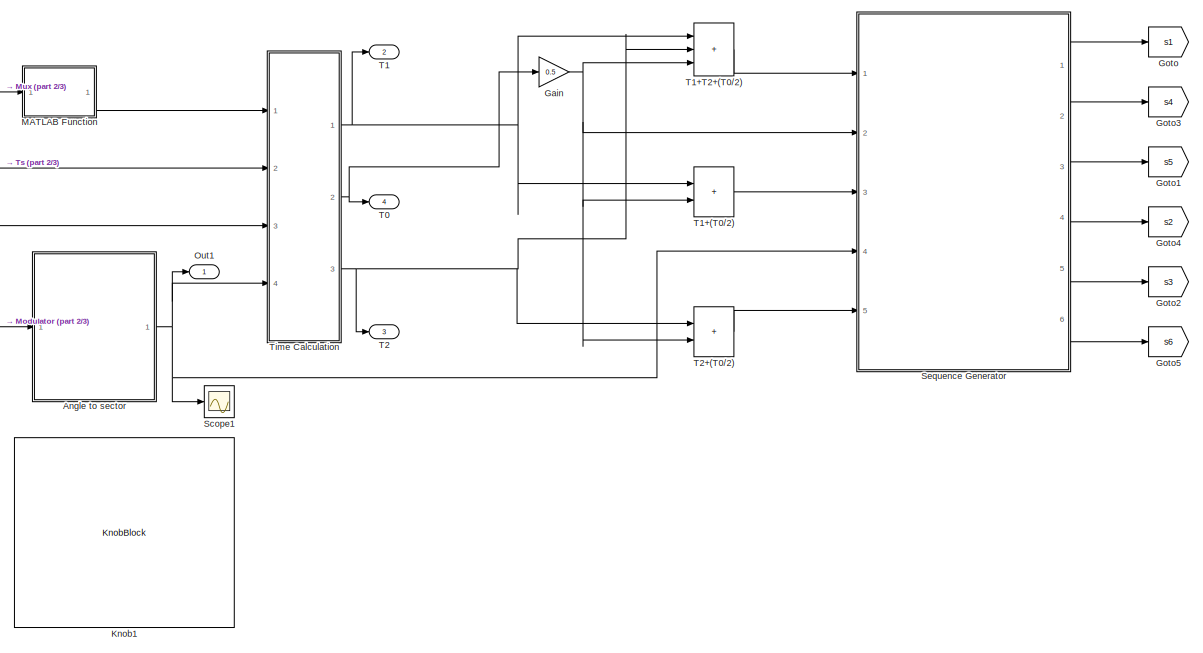
[diagram: root canvas - part 1/3, center side, full height]
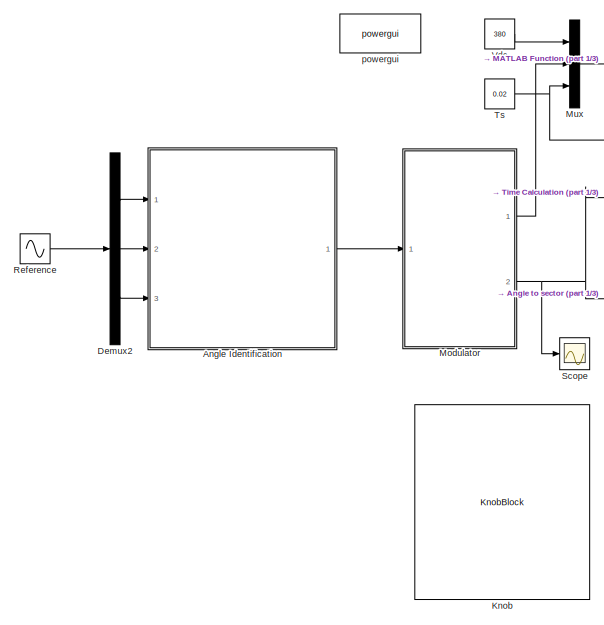
[diagram: root canvas - part 2/3, left side, full height]
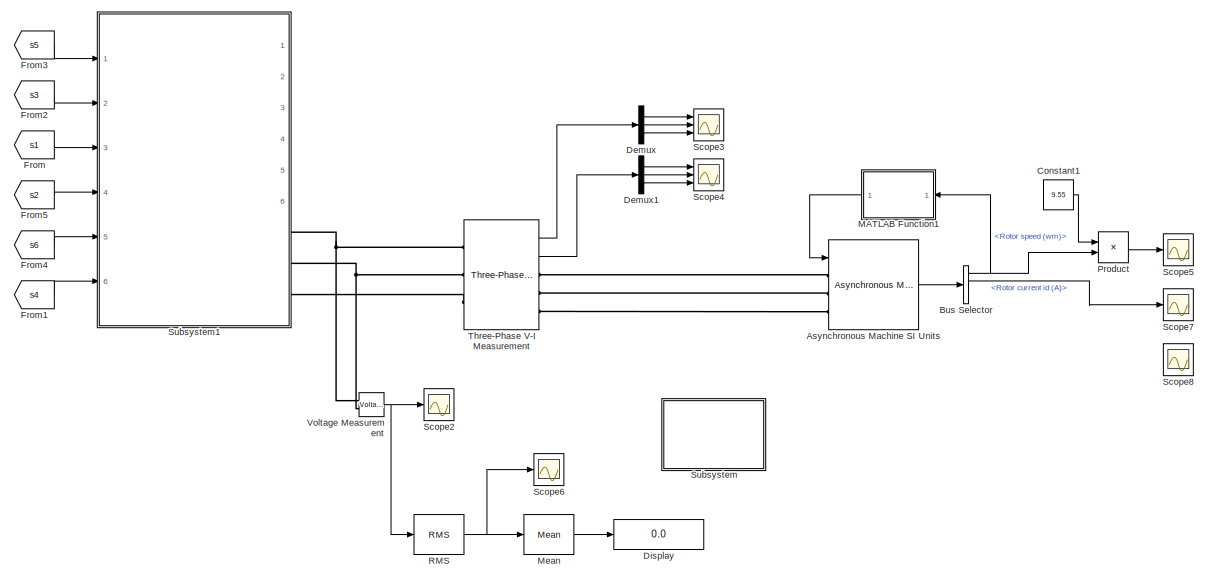
[diagram: root canvas - part 3/3, right side, full height]
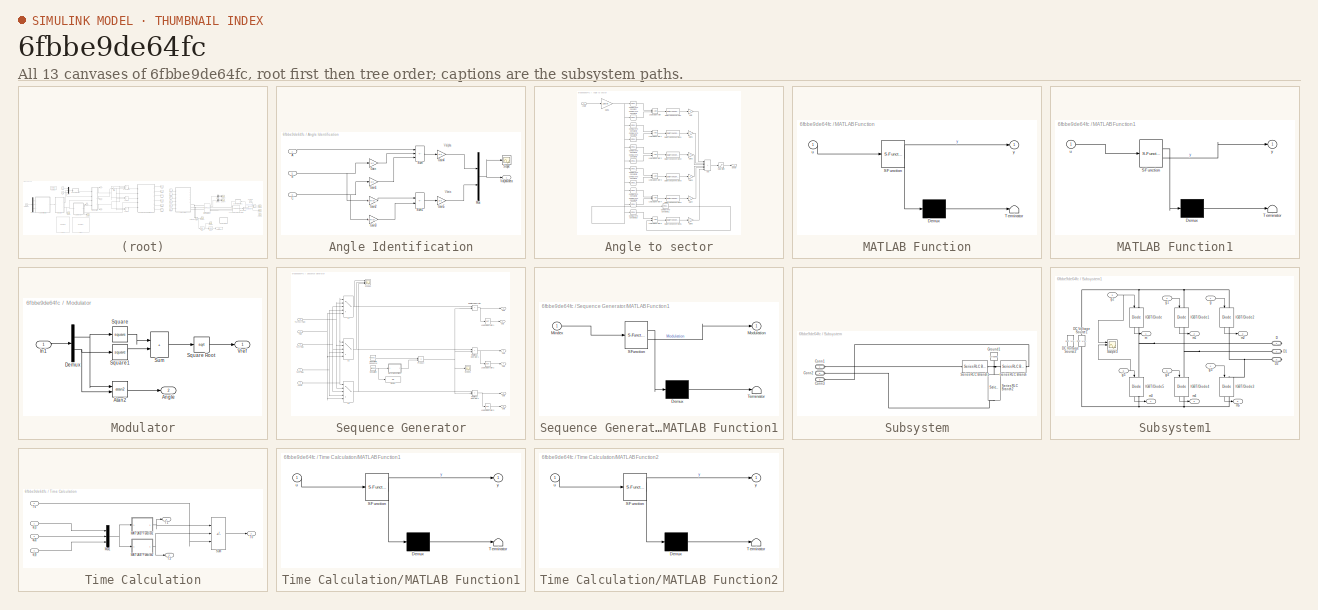
[diagram: thumbnail index - all 13 canvases of the model, root first then tree order]
MODEL slx_6fbbe9de64fc
KIND model
CONFIG AbsTol = auto
CONFIG EnableMultiTasking = off
CONFIG FixedStep = auto
CONFIG MaxStep = auto
CONFIG MinStep = auto
CONFIG RelTol = 1e-5
CONFIG SampleTimeConstraint = Unconstrained
CONFIG SolverName = VariableStepAuto
CONFIG StartTime = 0.0
CONFIG StopTime = 0.5
WORKSPACE source: mxarray member
WORKSPACE Mindex = 0.795982752482
WORKSPACE Modulation = 5
BLOCK [SubSystem] Angle Identification
  Ports = [3, 1]
  RequestExecContextInheritance = off
BLOCK [Inport] Angle Identification/A
BLOCK [Inport] Angle Identification/B
  Port = 2
BLOCK [Inport] Angle Identification/C
  Port = 3
BLOCK [Gain] Angle Identification/Gain
  Gain = 1/2
BLOCK [Gain] Angle Identification/Gain1
  Gain = 1/2
BLOCK [Gain] Angle Identification/Gain2
  Gain = sqrt(3)/2
BLOCK [Gain] Angle Identification/Gain3
  Gain = sqrt(3)/2
BLOCK [Gain] Angle Identification/Gain4
  Gain = 2/3
BLOCK [Gain] Angle Identification/Gain5
  Gain = 2/3
BLOCK [Mux] Angle Identification/Mux
  DisplayOption = bar
  Inputs = 2
  Ports = [2, 1]
BLOCK [Scope] Angle Identification/Scope
  Floating = off
  NumInputPorts = 1
  Ports = [1]
  ScopeSpecificationString = Simulink.scopes.TimeScopeBlockCfg('CurrentConfiguration', extmgr.ConfigurationSet(extmgr.Configuration('Core','General UI',true),extmgr.Configuration('Core','Source UI',true),extmgr.Configuration('Sources','WiredSimulink',true),extmgr.Configuration('Visuals','Time Domain',true,'SerializedDisplays',{struct('MinYLimReal','-411.4071','MaxYLimReal','398.42896','YLabelReal','','MinYLimMag',' 0.00000','...<+1362ch>
BLOCK [Sum] Angle Identification/Sum
  IconShape = rectangular
  Inputs = |+--
  Ports = [3, 1]
BLOCK [Sum] Angle Identification/Sum1
  IconShape = rectangular
  Inputs = |+-
  Ports = [2, 1]
BLOCK [Outport] Angle Identification/Valpha-beta
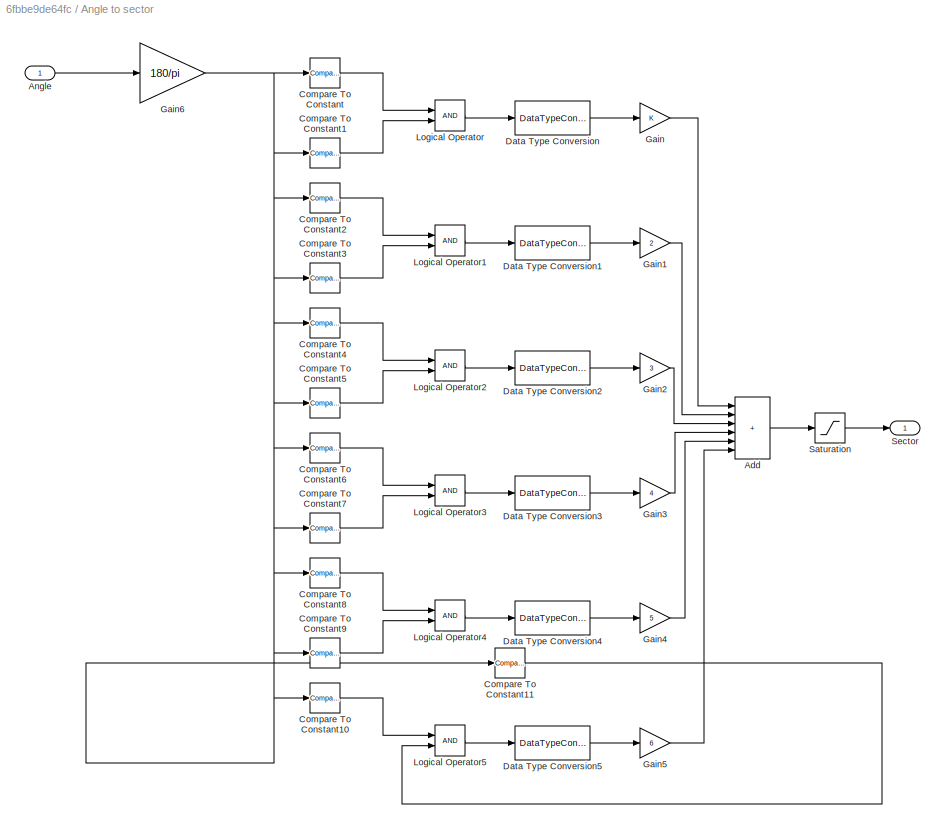
BLOCK [SubSystem] Angle to sector
  Ports = [1, 1]
  RequestExecContextInheritance = off
BLOCK [Sum] Angle to sector/Add
  IconShape = rectangular
  Inputs = ++++++
  Ports = [6, 1]
BLOCK [Inport] Angle to sector/Angle
BLOCK [Reference] Angle to sector/Compare To Constant  REF=simulink/Logic and Bit
Operations/Compare
To Constant
  Ports = [1, 1]
  SourceBlock = simulink/Logic and Bit\nOperations/Compare\nTo Constant
  SourceProductBaseCode = SL
  SourceType = Compare To Constant
BLOCK [Reference] Angle to sector/Compare To Constant1  REF=simulink/Logic and Bit
Operations/Compare
To Constant
  Ports = [1, 1]
  SourceBlock = simulink/Logic and Bit\nOperations/Compare\nTo Constant
  SourceProductBaseCode = SL
  SourceType = Compare To Constant
BLOCK [Reference] Angle to sector/Compare To Constant10  REF=simulink/Logic and Bit
Operations/Compare
To Constant
  Ports = [1, 1]
  SourceBlock = simulink/Logic and Bit\nOperations/Compare\nTo Constant
  SourceProductBaseCode = SL
  SourceType = Compare To Constant
BLOCK [Reference] Angle to sector/Compare To Constant11  REF=simulink/Logic and Bit
Operations/Compare
To Constant
  Ports = [1, 1]
  SourceBlock = simulink/Logic and Bit\nOperations/Compare\nTo Constant
  SourceProductBaseCode = SL
  SourceType = Compare To Constant
BLOCK [Reference] Angle to sector/Compare To Constant2  REF=simulink/Logic and Bit
Operations/Compare
To Constant
  Ports = [1, 1]
  SourceBlock = simulink/Logic and Bit\nOperations/Compare\nTo Constant
  SourceProductBaseCode = SL
  SourceType = Compare To Constant
BLOCK [Reference] Angle to sector/Compare To Constant3  REF=simulink/Logic and Bit
Operations/Compare
To Constant
  Ports = [1, 1]
  SourceBlock = simulink/Logic and Bit\nOperations/Compare\nTo Constant
  SourceProductBaseCode = SL
  SourceType = Compare To Constant
BLOCK [Reference] Angle to sector/Compare To Constant4  REF=simulink/Logic and Bit
Operations/Compare
To Constant
  Ports = [1, 1]
  SourceBlock = simulink/Logic and Bit\nOperations/Compare\nTo Constant
  SourceProductBaseCode = SL
  SourceType = Compare To Constant
BLOCK [Reference] Angle to sector/Compare To Constant5  REF=simulink/Logic and Bit
Operations/Compare
To Constant
  Ports = [1, 1]
  SourceBlock = simulink/Logic and Bit\nOperations/Compare\nTo Constant
  SourceProductBaseCode = SL
  SourceType = Compare To Constant
BLOCK [Reference] Angle to sector/Compare To Constant6  REF=simulink/Logic and Bit
Operations/Compare
To Constant
  Ports = [1, 1]
  SourceBlock = simulink/Logic and Bit\nOperations/Compare\nTo Constant
  SourceProductBaseCode = SL
  SourceType = Compare To Constant
BLOCK [Reference] Angle to sector/Compare To Constant7  REF=simulink/Logic and Bit
Operations/Compare
To Constant
  Ports = [1, 1]
  SourceBlock = simulink/Logic and Bit\nOperations/Compare\nTo Constant
  SourceProductBaseCode = SL
  SourceType = Compare To Constant
BLOCK [Reference] Angle to sector/Compare To Constant8  REF=simulink/Logic and Bit
Operations/Compare
To Constant
  Ports = [1, 1]
  SourceBlock = simulink/Logic and Bit\nOperations/Compare\nTo Constant
  SourceProductBaseCode = SL
  SourceType = Compare To Constant
BLOCK [Reference] Angle to sector/Compare To Constant9  REF=simulink/Logic and Bit
Operations/Compare
To Constant
  Ports = [1, 1]
  SourceBlock = simulink/Logic and Bit\nOperations/Compare\nTo Constant
  SourceProductBaseCode = SL
  SourceType = Compare To Constant
BLOCK [DataTypeConversion] Angle to sector/Data Type Conversion
  RndMeth = Floor
  SaturateOnIntegerOverflow = off
BLOCK [DataTypeConversion] Angle to sector/Data Type Conversion1
  RndMeth = Floor
  SaturateOnIntegerOverflow = off
BLOCK [DataTypeConversion] Angle to sector/Data Type Conversion2
  RndMeth = Floor
  SaturateOnIntegerOverflow = off
BLOCK [DataTypeConversion] Angle to sector/Data Type Conversion3
  RndMeth = Floor
  SaturateOnIntegerOverflow = off
BLOCK [DataTypeConversion] Angle to sector/Data Type Conversion4
  RndMeth = Floor
  SaturateOnIntegerOverflow = off
BLOCK [DataTypeConversion] Angle to sector/Data Type Conversion5
  RndMeth = Floor
  SaturateOnIntegerOverflow = off
BLOCK [Gain] Angle to sector/Gain
BLOCK [Gain] Angle to sector/Gain1
  Gain = 2
BLOCK [Gain] Angle to sector/Gain2
  Gain = 3
BLOCK [Gain] Angle to sector/Gain3
  Gain = 4
BLOCK [Gain] Angle to sector/Gain4
  Gain = 5
BLOCK [Gain] Angle to sector/Gain5
  Gain = 6
BLOCK [Gain] Angle to sector/Gain6
  Gain = 180/pi
BLOCK [Logic] Angle to sector/Logical Operator
  AllPortsSameDT = off
  OutDataTypeStr = boolean
  Ports = [2, 1]
BLOCK [Logic] Angle to sector/Logical Operator1
  AllPortsSameDT = off
  OutDataTypeStr = boolean
  Ports = [2, 1]
BLOCK [Logic] Angle to sector/Logical Operator2
  AllPortsSameDT = off
  OutDataTypeStr = boolean
  Ports = [2, 1]
BLOCK [Logic] Angle to sector/Logical Operator3
  AllPortsSameDT = off
  OutDataTypeStr = boolean
  Ports = [2, 1]
BLOCK [Logic] Angle to sector/Logical Operator4
  AllPortsSameDT = off
  OutDataTypeStr = boolean
  Ports = [2, 1]
BLOCK [Logic] Angle to sector/Logical Operator5
  AllPortsSameDT = off
  OutDataTypeStr = boolean
  Ports = [2, 1]
BLOCK [Saturate] Angle to sector/Saturation
  LowerLimit = 1
  UpperLimit = 6
BLOCK [Outport] Angle to sector/Sector
BLOCK [Reference] Asynchronous Machine SI Units  REF=spsAsynchronousMachineSIUnitsLib/Asynchronous Machine
SI Units
  Ports = [1, 1, 0, 0, 0, 3]
  SourceBlock = spsAsynchronousMachineSIUnitsLib/Asynchronous Machine\nSI Units
  SourceProductBaseCode = PS
  SourceType = Asynchronous Machine
BLOCK [BusSelector] Bus Selector
  OutputSignals = Mechanical.Rotor speed (wm),Rotor measurements.Rotor current  id (A),Rotor measurements.Rotor current  iq (A),Mechanical.Electromagnetic torque Te (N*m)
  Ports = [1, 4]
BLOCK [Constant] Constant1
  Value = 9.55
BLOCK [Demux] Demux
  Outputs = 3
  Ports = [1, 3]
BLOCK [Demux] Demux1
  Outputs = 3
  Ports = [1, 3]
BLOCK [Demux] Demux2
  Outputs = 3
  Ports = [1, 3]
BLOCK [Display] Display
  Commented = on
  Decimation = 1
  Ports = [1]
BLOCK [From] From
  GotoTag = s1
BLOCK [From] From1
  GotoTag = s4
BLOCK [From] From2
  GotoTag = s3
BLOCK [From] From3
  GotoTag = s5
BLOCK [From] From4
  GotoTag = s6
BLOCK [From] From5
  GotoTag = s2
BLOCK [Gain] Gain
  Gain = 0.5
BLOCK [Goto] Goto
  GotoTag = s1
BLOCK [Goto] Goto1
  GotoTag = s5
BLOCK [Goto] Goto2
  GotoTag = s3
BLOCK [Goto] Goto3
  GotoTag = s4
BLOCK [Goto] Goto4
  GotoTag = s2
BLOCK [Goto] Goto5
  GotoTag = s6
BLOCK [KnobBlock] Knob
  TickInterval = 5
BLOCK [KnobBlock] Knob1
  ScaleMax = 1.15
  TickInterval = 0.05
BLOCK [SubSystem] MATLAB Function
  ErrorFcn = Stateflow.Translate.translate
  PermitHierarchicalResolution = ExplicitOnly
  Ports = [1, 1]
  RequestExecContextInheritance = off
  SFBlockType = MATLAB Function
  TreatAsAtomicUnit = on
BLOCK [Demux] MATLAB Function/ Demux 
  Outputs = 1
  Ports = [1, 1]
BLOCK [S-Function] MATLAB Function/ SFunction 
  EnableBusSupport = on
  FunctionName = sf_sfun
  PortCounts = [1 2]
  Ports = [1, 2]
  SFcnIsStateOwnerBlock = off
  SFunctionDeploymentMode = off
  Tag = Stateflow S-Function 2
BLOCK [Terminator] MATLAB Function/ Terminator 
BLOCK [Inport] MATLAB Function/u
BLOCK [Outport] MATLAB Function/y
BLOCK [SubSystem] MATLAB Function1
  ErrorFcn = Stateflow.Translate.translate
  NameLocation = top
  PermitHierarchicalResolution = ExplicitOnly
  Ports = [1, 1]
  RequestExecContextInheritance = off
  SFBlockType = MATLAB Function
  TreatAsAtomicUnit = on
BLOCK [Demux] MATLAB Function1/ Demux 
  Outputs = 1
  Ports = [1, 1]
BLOCK [S-Function] MATLAB Function1/ SFunction 
  EnableBusSupport = on
  FunctionName = sf_sfun
  PortCounts = [1 2]
  Ports = [1, 2]
  SFcnIsStateOwnerBlock = off
  SFunctionDeploymentMode = off
  Tag = Stateflow S-Function 5
BLOCK [Terminator] MATLAB Function1/ Terminator 
BLOCK [Inport] MATLAB Function1/u
BLOCK [Outport] MATLAB Function1/y
BLOCK [Reference] Mean  REF=spsMeanLib/Mean
  Commented = on
  Ports = [1, 1]
  SourceBlock = spsMeanLib/Mean
  SourceProductBaseCode = PS
  SourceType = Mean
BLOCK [SubSystem] Modulator
  Ports = [1, 2]
  RequestExecContextInheritance = off
BLOCK [Outport] Modulator/Angle
  Port = 2
BLOCK [Trigonometry] Modulator/Atan2
  Operator = atan2
  Ports = [2, 1]
BLOCK [Demux] Modulator/Demux
  Outputs = 2
  Ports = [1, 2]
BLOCK [Inport] Modulator/In1
BLOCK [Math] Modulator/Square
  Operator = square
  Ports = [1, 1]
BLOCK [Sqrt] Modulator/Square Root
BLOCK [Math] Modulator/Square1
  Operator = square
  Ports = [1, 1]
BLOCK [Sum] Modulator/Sum
  IconShape = rectangular
  Inputs = |++
  Ports = [2, 1]
BLOCK [Outport] Modulator/Vref
BLOCK [Mux] Mux
  DisplayOption = bar
  Inputs = 3
  Ports = [3, 1]
BLOCK [Outport] Out1
  SignalName = sector
BLOCK [Product] Product
  Ports = [2, 1]
BLOCK [Reference] RMS  REF=spsRMSLib/RMS
  Ports = [1, 1]
  SourceBlock = spsRMSLib/RMS
  SourceProductBaseCode = PS
  SourceType = RMS
BLOCK [Sin] Reference
  Amplitude = 230
  Frequency = 49.62226359049479
  Phase = [0 -2*pi/3 -4*pi/3]
  Ports = [0, 1]
  SampleTime = 0
BLOCK [Scope] Scope
  Floating = off
  NumInputPorts = 1
  Ports = [1]
  ScopeSpecificationString = Simulink.scopes.TimeScopeBlockCfg('CurrentConfiguration', extmgr.ConfigurationSet(extmgr.Configuration('Core','General UI',true),extmgr.Configuration('Core','Source UI',true),extmgr.Configuration('Sources','WiredSimulink',true,'DataLoggingVariableName','ScopeData3'),extmgr.Configuration('Visuals','Time Domain',true,'SerializedDisplays',{struct('MinYLimReal','-3.29395','MaxYLimReal','3.42271','YLab...<+1389ch>
BLOCK [Scope] Scope1
  Floating = off
  NumInputPorts = 1
  Ports = [1]
  ScopeSpecificationString = Simulink.scopes.TimeScopeBlockCfg('CurrentConfiguration', extmgr.ConfigurationSet(extmgr.Configuration('Core','General UI',true),extmgr.Configuration('Core','Source UI',true),extmgr.Configuration('Sources','WiredSimulink',true,'DataLoggingVariableName','ScopeData4'),extmgr.Configuration('Visuals','Time Domain',true,'SerializedDisplays',{struct('MinYLimReal','0.92999','MaxYLimReal','6.25786','YLabe...<+1391ch>
BLOCK [Scope] Scope2
  Floating = off
  NumInputPorts = 1
  Ports = [1]
  ScopeSpecificationString = Simulink.scopes.TimeScopeBlockCfg('CurrentConfiguration', extmgr.ConfigurationSet(extmgr.Configuration('Core','General UI',true),extmgr.Configuration('Core','Source UI',true),extmgr.Configuration('Sources','WiredSimulink',true,'DataLoggingVariableName','ScopeData1','DataLogging',true,'DataLoggingSaveFormat','StructureWithTime'),extmgr.Configuration('Visuals','Time Domain',true,'SerializedDisplays'...<+1576ch>
BLOCK [Scope] Scope3
  Floating = off
  NumInputPorts = 3
  Ports = [3]
  ScopeSpecificationString = Simulink.scopes.TimeScopeBlockCfg('CurrentConfiguration', extmgr.ConfigurationSet(extmgr.Configuration('Core','General UI',true),extmgr.Configuration('Core','Source UI',true),extmgr.Configuration('Sources','WiredSimulink',true,'DataLoggingVariableName','ScopeData1'),extmgr.Configuration('Visuals','Time Domain',true,'SerializedDisplays',{struct('MinYLimReal','-499.99736','MaxYLimReal','499.97623','...<+2834ch>
BLOCK [Scope] Scope4
  Floating = off
  NumInputPorts = 3
  Ports = [3]
  ScopeSpecificationString = Simulink.scopes.TimeScopeBlockCfg('CurrentConfiguration', extmgr.ConfigurationSet(extmgr.Configuration('Core','General UI',true),extmgr.Configuration('Core','Source UI',true),extmgr.Configuration('Sources','WiredSimulink',true,'DataLoggingVariableName','ScopeData2','DataLogging',true,'DataLoggingSaveFormat','StructureWithTime'),extmgr.Configuration('Visuals','Time Domain',true,'SerializedDisplays'...<+2764ch>
BLOCK [Scope] Scope5
  Floating = off
  NumInputPorts = 1
  Ports = [1]
  ScopeSpecificationString = Simulink.scopes.TimeScopeBlockCfg('CurrentConfiguration', extmgr.ConfigurationSet(extmgr.Configuration('Core','General UI',true),extmgr.Configuration('Core','Source UI',true),extmgr.Configuration('Sources','WiredSimulink',true,'DataLoggingVariableName','ScopeData1'),extmgr.Configuration('Visuals','Time Domain',true,'SerializedDisplays',{struct('MinYLimReal','-402.26452','MaxYLimReal','1711.48549',...<+1428ch>
BLOCK [Scope] Scope6
  Floating = off
  NumInputPorts = 1
  Ports = [1]
  ScopeSpecificationString = Simulink.scopes.TimeScopeBlockCfg('CurrentConfiguration', extmgr.ConfigurationSet(extmgr.Configuration('Core','General UI',true),extmgr.Configuration('Core','Source UI',true),extmgr.Configuration('Sources','WiredSimulink',true,'DataLoggingVariableName','ScopeData2'),extmgr.Configuration('Visuals','Time Domain',true,'SerializedDisplays',{struct('MinYLimReal','92.72413','MaxYLimReal','423.03065','YL...<+1746ch>
BLOCK [Scope] Scope7
  Floating = off
  NumInputPorts = 1
  Ports = [1]
  ScopeSpecificationString = Simulink.scopes.TimeScopeBlockCfg('CurrentConfiguration', extmgr.ConfigurationSet(extmgr.Configuration('Core','General UI',true),extmgr.Configuration('Core','Source UI',true),extmgr.Configuration('Sources','WiredSimulink',true,'DataLoggingVariableName','ScopeData3'),extmgr.Configuration('Visuals','Time Domain',true,'SerializedDisplays',{struct('MinYLimReal','-4.2041','MaxYLimReal','9.38643','YLabe...<+1399ch>
BLOCK [Scope] Scope8
  Floating = off
  NumInputPorts = 1
  Ports = [1]
  ScopeSpecificationString = Simulink.scopes.TimeScopeBlockCfg('CurrentConfiguration', extmgr.ConfigurationSet(extmgr.Configuration('Core','General UI',true),extmgr.Configuration('Core','Source UI',true),extmgr.Configuration('Sources','WiredSimulink',true,'DataLoggingVariableName','ScopeData4'),extmgr.Configuration('Visuals','Time Domain',true,'SerializedDisplays',{struct('MinYLimReal','-1.00000','MaxYLimReal','1.00000','YLab...<+1403ch>
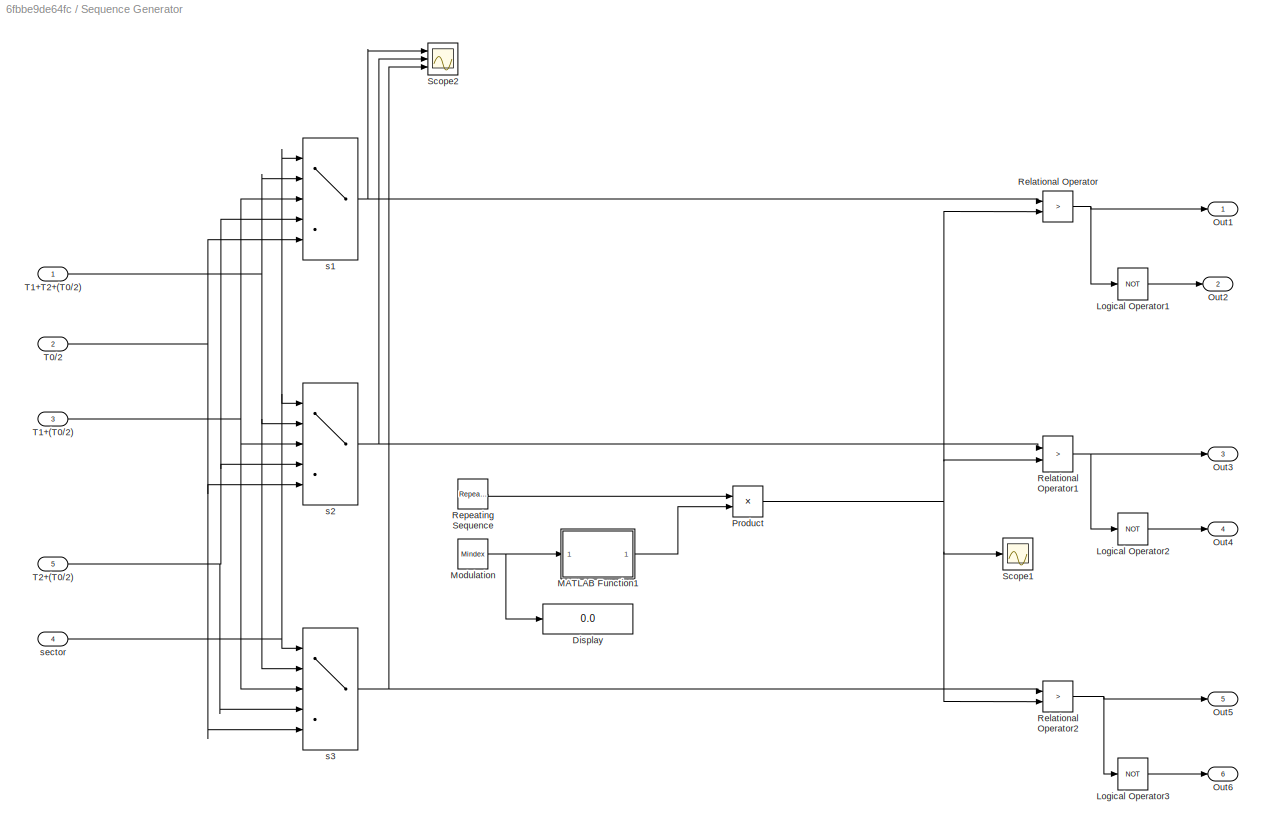
BLOCK [SubSystem] Sequence Generator
  Ports = [5, 6]
  RequestExecContextInheritance = off
BLOCK [Display] Sequence Generator/Display
  Decimation = 1
  Ports = [1]
BLOCK [Logic] Sequence Generator/Logical Operator1
  AllPortsSameDT = off
  Operator = NOT
  OutDataTypeStr = boolean
  Ports = [1, 1]
BLOCK [Logic] Sequence Generator/Logical Operator2
  AllPortsSameDT = off
  Operator = NOT
  OutDataTypeStr = boolean
  Ports = [1, 1]
BLOCK [Logic] Sequence Generator/Logical Operator3
  AllPortsSameDT = off
  Operator = NOT
  OutDataTypeStr = boolean
  Ports = [1, 1]
BLOCK [SubSystem] Sequence Generator/MATLAB Function1
  ErrorFcn = Stateflow.Translate.translate
  PermitHierarchicalResolution = ExplicitOnly
  Ports = [1, 1]
  RequestExecContextInheritance = off
  SFBlockType = MATLAB Function
  TreatAsAtomicUnit = on
BLOCK [Demux] Sequence Generator/MATLAB Function1/ Demux 
  Outputs = 1
  Ports = [1, 1]
BLOCK [S-Function] Sequence Generator/MATLAB Function1/ SFunction 
  EnableBusSupport = on
  FunctionName = sf_sfun
  PortCounts = [1 2]
  Ports = [1, 2]
  SFcnIsStateOwnerBlock = off
  SFunctionDeploymentMode = off
  Tag = Stateflow S-Function 4
BLOCK [Terminator] Sequence Generator/MATLAB Function1/ Terminator 
BLOCK [Inport] Sequence Generator/MATLAB Function1/Mindex
BLOCK [Outport] Sequence Generator/MATLAB Function1/Modulation
BLOCK [Constant] Sequence Generator/Modulation
  Value = Mindex
BLOCK [Outport] Sequence Generator/Out1
BLOCK [Outport] Sequence Generator/Out2
  Port = 2
BLOCK [Outport] Sequence Generator/Out3
  Port = 3
BLOCK [Outport] Sequence Generator/Out4
  Port = 4
BLOCK [Outport] Sequence Generator/Out5
  Port = 5
BLOCK [Outport] Sequence Generator/Out6
  Port = 6
BLOCK [Product] Sequence Generator/Product
  Ports = [2, 1]
BLOCK [RelationalOperator] Sequence Generator/Relational Operator
  InputSameDT = off
  Operator = >
  OutDataTypeStr = boolean
  Ports = [2, 1]
  RndMeth = Simplest
BLOCK [RelationalOperator] Sequence Generator/Relational Operator1
  InputSameDT = off
  Operator = >
  OutDataTypeStr = boolean
  Ports = [2, 1]
  RndMeth = Simplest
BLOCK [RelationalOperator] Sequence Generator/Relational Operator2
  InputSameDT = off
  Operator = >
  OutDataTypeStr = boolean
  Ports = [2, 1]
  RndMeth = Simplest
BLOCK [Reference] Sequence Generator/Repeating Sequence  REF=simulink/Sources/Repeating
Sequence
  Ports = [0, 1]
  SourceBlock = simulink/Sources/Repeating\nSequence
  SourceProductBaseCode = SL
  SourceType = Repeating table
BLOCK [Scope] Sequence Generator/Scope1
  Floating = off
  NumInputPorts = 1
  Ports = [1]
  ScopeSpecificationString = Simulink.scopes.TimeScopeBlockCfg('CurrentConfiguration', extmgr.ConfigurationSet(extmgr.Configuration('Core','General UI',true),extmgr.Configuration('Core','Source UI',true),extmgr.Configuration('Sources','WiredSimulink',true,'DataLoggingVariableName','ScopeData3'),extmgr.Configuration('Visuals','Time Domain',true,'SerializedDisplays',{struct('MinYLimReal','0.024112524','MaxYLimReal','0.024112552...<+1494ch>
BLOCK [Scope] Sequence Generator/Scope2
  Floating = off
  NumInputPorts = 3
  Ports = [3]
  ScopeSpecificationString = Simulink.scopes.TimeScopeBlockCfg('CurrentConfiguration', extmgr.ConfigurationSet(extmgr.Configuration('Core','General UI',true),extmgr.Configuration('Core','Source UI',true),extmgr.Configuration('Sources','WiredSimulink',true,'DataLoggingVariableName','ScopeData5'),extmgr.Configuration('Visuals','Time Domain',true,'SerializedDisplays',{struct('MinYLimReal','-0.0031','MaxYLimReal','0.0231','YLabel...<+1463ch>
BLOCK [Inport] Sequence Generator/T0//2
  Port = 2
BLOCK [Inport] Sequence Generator/T1+(T0//2)
  Port = 3
BLOCK [Inport] Sequence Generator/T1+T2+(T0//2)
BLOCK [Inport] Sequence Generator/T2+(T0//2)
  Port = 5
BLOCK [MultiPortSwitch] Sequence Generator/s1
  DataPortIndices = {[1,6],2,5,[3,4]}
  DataPortOrder = Specify indices
  InputSameDT = off
  Inputs = 4
  Ports = [5, 1]
  SaturateOnIntegerOverflow = off
BLOCK [MultiPortSwitch] Sequence Generator/s2
  DataPortIndices = {[2,3],4,1,[5,6]}
  DataPortOrder = Specify indices
  InputSameDT = off
  Inputs = 4
  Ports = [5, 1]
  SaturateOnIntegerOverflow = off
BLOCK [MultiPortSwitch] Sequence Generator/s3
  DataPortIndices = {[4,5],6,3,[1,2]}
  DataPortOrder = Specify indices
  InputSameDT = off
  Inputs = 4
  Ports = [5, 1]
  SaturateOnIntegerOverflow = off
BLOCK [Inport] Sequence Generator/sector
  Port = 4
BLOCK [SubSystem] Subsystem
  Commented = on
  Ports = [0, 0, 0, 0, 0, 3]
  RequestExecContextInheritance = off
BLOCK [PMIOPort] Subsystem/Conn1
  Side = Left
BLOCK [PMIOPort] Subsystem/Conn2
  Port = 2
  Side = Left
BLOCK [PMIOPort] Subsystem/Conn3
  Port = 3
  Side = Left
BLOCK [Reference] Subsystem/Ground1  REF=spsGroundLib/Ground
  NameLocation = left
  Ports = [0, 0, 0, 0, 0, 1]
  SourceBlock = spsGroundLib/Ground
  SourceProductBaseCode = PS
  SourceType = Ground
BLOCK [Reference] Subsystem/Series RLC Branch  REF=spsSeriesRLCBranchLib/Series RLC Branch
  NameLocation = top
  Ports = [0, 0, 0, 0, 0, 1, 1]
  SourceBlock = spsSeriesRLCBranchLib/Series RLC Branch
  SourceProductBaseCode = PS
  SourceType = Series RLC Branch
BLOCK [Reference] Subsystem/Series RLC Branch1  REF=spsSeriesRLCBranchLib/Series RLC Branch
  Ports = [0, 0, 0, 0, 0, 1, 1]
  SourceBlock = spsSeriesRLCBranchLib/Series RLC Branch
  SourceProductBaseCode = PS
  SourceType = Series RLC Branch
BLOCK [Reference] Subsystem/Series RLC Branch2  REF=spsSeriesRLCBranchLib/Series RLC Branch
  NameLocation = right
  Ports = [0, 0, 0, 0, 0, 1, 1]
  SourceBlock = spsSeriesRLCBranchLib/Series RLC Branch
  SourceProductBaseCode = PS
  SourceType = Series RLC Branch
BLOCK [SubSystem] Subsystem1
  Ports = [6, 6, 0, 0, 0, 0, 3]
  RequestExecContextInheritance = off
BLOCK [PMIOPort] Subsystem1/D
  Side = Right
BLOCK [PMIOPort] Subsystem1/D1
  Port = 2
  Side = Right
BLOCK [PMIOPort] Subsystem1/D2
  Port = 3
  Side = Right
BLOCK [Reference] Subsystem1/DC Voltage Source1  REF=spsDCVoltageSourceLib/DC Voltage Source
  Ports = [0, 0, 0, 0, 0, 1, 1]
  SourceBlock = spsDCVoltageSourceLib/DC Voltage Source
  SourceProductBaseCode = PS
  SourceType = DC Voltage Source
BLOCK [Reference] Subsystem1/DC Voltage Source2  REF=spsDCVoltageSourceLib/DC Voltage Source
  Ports = [0, 0, 0, 0, 0, 1, 1]
  SourceBlock = spsDCVoltageSourceLib/DC Voltage Source
  SourceProductBaseCode = PS
  SourceType = DC Voltage Source
BLOCK [Reference] Subsystem1/IGBT//Diode  REF=spsIGBTDiodeLib/IGBT//Diode
  NameLocation = left
  Ports = [1, 1, 0, 0, 0, 1, 1]
  SourceBlock = spsIGBTDiodeLib/IGBT//Diode
  SourceProductBaseCode = PS
  SourceType = IGBT/Diode
BLOCK [Reference] Subsystem1/IGBT//Diode1  REF=spsIGBTDiodeLib/IGBT//Diode
  NameLocation = left
  Ports = [1, 1, 0, 0, 0, 1, 1]
  SourceBlock = spsIGBTDiodeLib/IGBT//Diode
  SourceProductBaseCode = PS
  SourceType = IGBT/Diode
BLOCK [Reference] Subsystem1/IGBT//Diode2  REF=spsIGBTDiodeLib/IGBT//Diode
  NameLocation = left
  Ports = [1, 1, 0, 0, 0, 1, 1]
  SourceBlock = spsIGBTDiodeLib/IGBT//Diode
  SourceProductBaseCode = PS
  SourceType = IGBT/Diode
BLOCK [Reference] Subsystem1/IGBT//Diode3  REF=spsIGBTDiodeLib/IGBT//Diode
  NameLocation = left
  Ports = [1, 1, 0, 0, 0, 1, 1]
  SourceBlock = spsIGBTDiodeLib/IGBT//Diode
  SourceProductBaseCode = PS
  SourceType = IGBT/Diode
BLOCK [Reference] Subsystem1/IGBT//Diode4  REF=spsIGBTDiodeLib/IGBT//Diode
  NameLocation = left
  Ports = [1, 1, 0, 0, 0, 1, 1]
  SourceBlock = spsIGBTDiodeLib/IGBT//Diode
  SourceProductBaseCode = PS
  SourceType = IGBT/Diode
BLOCK [Reference] Subsystem1/IGBT//Diode5  REF=spsIGBTDiodeLib/IGBT//Diode
  NameLocation = left
  Ports = [1, 1, 0, 0, 0, 1, 1]
  SourceBlock = spsIGBTDiodeLib/IGBT//Diode
  SourceProductBaseCode = PS
  SourceType = IGBT/Diode
BLOCK [Scope] Subsystem1/Scope3
  Floating = off
  NumInputPorts = 3
  Ports = [3]
  ScopeSpecificationString = Simulink.scopes.TimeScopeBlockCfg('CurrentConfiguration', extmgr.ConfigurationSet(extmgr.Configuration('Core','General UI',true),extmgr.Configuration('Core','Source UI',true),extmgr.Configuration('Sources','WiredSimulink',true,'DataLoggingVariableName','ScopeData2'),extmgr.Configuration('Visuals','Time Domain',true,'SerializedDisplays',{struct('MinYLimReal','-0.125','MaxYLimReal','1.05735','YLabel...<+2701ch>
BLOCK [Inport] Subsystem1/g
BLOCK [Inport] Subsystem1/g1
  Port = 2
BLOCK [Inport] Subsystem1/g2
  Port = 3
BLOCK [Inport] Subsystem1/g3
  Port = 4
BLOCK [Inport] Subsystem1/g4
  Port = 5
BLOCK [Inport] Subsystem1/g5
  Port = 6
BLOCK [Outport] Subsystem1/m
BLOCK [Outport] Subsystem1/m1
  Port = 2
BLOCK [Outport] Subsystem1/m2
  Port = 3
BLOCK [Outport] Subsystem1/m3
  Port = 4
BLOCK [Outport] Subsystem1/m4
  Port = 5
BLOCK [Outport] Subsystem1/m5
  Port = 6
BLOCK [Outport] T0
  Port = 4
BLOCK [Outport] T1
  Port = 2
BLOCK [Sum] T1+(T0//2)
  IconShape = rectangular
  Inputs = |++
  Ports = [2, 1]
BLOCK [Sum] T1+T2+(T0//2)
  IconShape = rectangular
  Inputs = |+++
  Ports = [3, 1]
BLOCK [Outport] T2
  Port = 3
BLOCK [Sum] T2+(T0//2)
  IconShape = rectangular
  Inputs = |++
  Ports = [2, 1]
BLOCK [Reference] Three-Phase V-I Measurement  REF=spsThreePhaseVIMeasurementLib/Three-Phase
V-I Measurement
  Ports = [0, 2, 0, 0, 0, 3, 3]
  SourceBlock = spsThreePhaseVIMeasurementLib/Three-Phase\nV-I Measurement
  SourceProductBaseCode = PS
  SourceType = Three-Phase VI Measurement
BLOCK [SubSystem] Time Calculation
  Ports = [4, 3]
  RequestExecContextInheritance = off
BLOCK [SubSystem] Time Calculation/MATLAB Function1
  ErrorFcn = Stateflow.Translate.translate
  PermitHierarchicalResolution = ExplicitOnly
  Ports = [1, 1]
  RequestExecContextInheritance = off
  SFBlockType = MATLAB Function
  TreatAsAtomicUnit = on
BLOCK [Demux] Time Calculation/MATLAB Function1/ Demux 
  Outputs = 1
  Ports = [1, 1]
BLOCK [S-Function] Time Calculation/MATLAB Function1/ SFunction 
  EnableBusSupport = on
  FunctionName = sf_sfun
  PortCounts = [1 2]
  Ports = [1, 2]
  SFcnIsStateOwnerBlock = off
  SFunctionDeploymentMode = off
  Tag = Stateflow S-Function 1
BLOCK [Terminator] Time Calculation/MATLAB Function1/ Terminator 
BLOCK [Inport] Time Calculation/MATLAB Function1/u
BLOCK [Outport] Time Calculation/MATLAB Function1/y
BLOCK [SubSystem] Time Calculation/MATLAB Function2
  ErrorFcn = Stateflow.Translate.translate
  PermitHierarchicalResolution = ExplicitOnly
  Ports = [1, 1]
  RequestExecContextInheritance = off
  SFBlockType = MATLAB Function
  TreatAsAtomicUnit = on
BLOCK [Demux] Time Calculation/MATLAB Function2/ Demux 
  Outputs = 1
  Ports = [1, 1]
BLOCK [S-Function] Time Calculation/MATLAB Function2/ SFunction 
  EnableBusSupport = on
  FunctionName = sf_sfun
  PortCounts = [1 2]
  Ports = [1, 2]
  SFcnIsStateOwnerBlock = off
  SFunctionDeploymentMode = off
  Tag = Stateflow S-Function 3
BLOCK [Terminator] Time Calculation/MATLAB Function2/ Terminator 
BLOCK [Inport] Time Calculation/MATLAB Function2/u
BLOCK [Outport] Time Calculation/MATLAB Function2/y
BLOCK [Mux] Time Calculation/Mux1
  DisplayOption = bar
  Inputs = 3
  Ports = [3, 1]
BLOCK [Sum] Time Calculation/Sum
  IconShape = rectangular
  Inputs = |--+
  Ports = [3, 1]
BLOCK [Outport] Time Calculation/T0
  Port = 2
BLOCK [Outport] Time Calculation/T1
BLOCK [Outport] Time Calculation/T2
  Port = 3
BLOCK [Inport] Time Calculation/Ts
  Port = 2
BLOCK [Inport] Time Calculation/u(1)
BLOCK [Inport] Time Calculation/u(2)
  Port = 3
BLOCK [Inport] Time Calculation/u(3)
  Port = 4
BLOCK [Constant] Ts
  Value = 0.02
BLOCK [Constant] Vdc
  Value = 380
BLOCK [Reference] Voltage Measurement  REF=spsVoltageMeasurementLib/Voltage Measurement
  Ports = [0, 1, 0, 0, 0, 2]
  SourceBlock = spsVoltageMeasurementLib/Voltage Measurement
  SourceProductBaseCode = PS
  SourceType = Voltage Measurement
  UserDataPersistent = on
BLOCK [Reference] powergui  REF=spspowerguiLib/powergui
  Ports = []
  Priority = 1
  SourceBlock = spspowerguiLib/powergui
  SourceProductBaseCode = PS
  SourceType = PSB option menu block
ANNOTATION Angle Identification: Vbeta
ANNOTATION Angle Identification: Valpha
LINE Angle Identification/A:1 -> Angle Identification/Sum:1
NET Angle Identification/B:1 -> Angle Identification/Gain2:1, Angle Identification/Gain:1
NET Angle Identification/C:1 -> Angle Identification/Gain1:1, Angle Identification/Gain3:1
LINE Angle Identification/Gain1:1 -> Angle Identification/Sum:3
LINE Angle Identification/Gain2:1 -> Angle Identification/Sum1:1
LINE Angle Identification/Gain3:1 -> Angle Identification/Sum1:2
LINE Angle Identification/Gain4:1 -> Angle Identification/Mux:1
LINE Angle Identification/Gain5:1 -> Angle Identification/Mux:2
LINE Angle Identification/Gain:1 -> Angle Identification/Sum:2
NET Angle Identification/Mux:1 -> Angle Identification/Scope:1, Angle Identification/Valpha-beta:1
LINE Angle Identification/Sum1:1 -> Angle Identification/Gain5:1
LINE Angle Identification/Sum:1 -> Angle Identification/Gain4:1
LINE Angle Identification:1 -> Modulator:1
LINE Angle to sector/Add:1 -> Angle to sector/Saturation:1
LINE Angle to sector/Angle:1 -> Angle to sector/Gain6:1
LINE Angle to sector/Compare To Constant10:1 -> Angle to sector/Logical Operator5:1
LINE Angle to sector/Compare To Constant11:1 -> Angle to sector/Logical Operator5:2
LINE Angle to sector/Compare To Constant1:1 -> Angle to sector/Logical Operator:2
LINE Angle to sector/Compare To Constant2:1 -> Angle to sector/Logical Operator1:1
LINE Angle to sector/Compare To Constant3:1 -> Angle to sector/Logical Operator1:2
LINE Angle to sector/Compare To Constant4:1 -> Angle to sector/Logical Operator2:1
LINE Angle to sector/Compare To Constant5:1 -> Angle to sector/Logical Operator2:2
LINE Angle to sector/Compare To Constant6:1 -> Angle to sector/Logical Operator3:1
LINE Angle to sector/Compare To Constant7:1 -> Angle to sector/Logical Operator3:2
LINE Angle to sector/Compare To Constant8:1 -> Angle to sector/Logical Operator4:1
LINE Angle to sector/Compare To Constant9:1 -> Angle to sector/Logical Operator4:2
LINE Angle to sector/Compare To Constant:1 -> Angle to sector/Logical Operator:1
LINE Angle to sector/Data Type Conversion1:1 -> Angle to sector/Gain1:1
LINE Angle to sector/Data Type Conversion2:1 -> Angle to sector/Gain2:1
LINE Angle to sector/Data Type Conversion3:1 -> Angle to sector/Gain3:1
LINE Angle to sector/Data Type Conversion4:1 -> Angle to sector/Gain4:1
LINE Angle to sector/Data Type Conversion5:1 -> Angle to sector/Gain5:1
LINE Angle to sector/Data Type Conversion:1 -> Angle to sector/Gain:1
LINE Angle to sector/Gain1:1 -> Angle to sector/Add:2
LINE Angle to sector/Gain2:1 -> Angle to sector/Add:3
LINE Angle to sector/Gain3:1 -> Angle to sector/Add:4
LINE Angle to sector/Gain4:1 -> Angle to sector/Add:5
LINE Angle to sector/Gain5:1 -> Angle to sector/Add:6
NET Angle to sector/Gain6:1 -> Angle to sector/Compare To Constant10:1, Angle to sector/Compare To Constant11:1, Angle to sector/Compare To Constant1:1, Angle to sector/Compare To Constant2:1, Angle to sector/Compare To Constant3:1, Angle to sector/Compare To Constant4:1, Angle to sector/Compare To Constant5:1, Angle to sector/Compare To Constant6:1, Angle to sector/Compare To Constant7:1, Angle to sector/Compare To Constant8:1, Angle to sector/Compare To Constant9:1, Angle to sector/Compare To Constant:1
LINE Angle to sector/Gain:1 -> Angle to sector/Add:1
LINE Angle to sector/Logical Operator1:1 -> Angle to sector/Data Type Conversion1:1
LINE Angle to sector/Logical Operator2:1 -> Angle to sector/Data Type Conversion2:1
LINE Angle to sector/Logical Operator3:1 -> Angle to sector/Data Type Conversion3:1
LINE Angle to sector/Logical Operator4:1 -> Angle to sector/Data Type Conversion4:1
LINE Angle to sector/Logical Operator5:1 -> Angle to sector/Data Type Conversion5:1
LINE Angle to sector/Logical Operator:1 -> Angle to sector/Data Type Conversion:1
LINE Angle to sector/Saturation:1 -> Angle to sector/Sector:1
NET Angle to sector:1 -> Out1:1, Scope1:1, Sequence Generator:4, Time Calculation:4
LINE Asynchronous Machine SI Units:1 -> Bus Selector:1
NET Bus Selector:1 -> MATLAB Function1:1, Product:2
LINE Bus Selector:2 -> Scope7:1
LINE Constant1:1 -> Product:1
LINE Demux1:1 -> Scope4:1
LINE Demux1:2 -> Scope4:2
LINE Demux1:3 -> Scope4:3
LINE Demux2:1 -> Angle Identification:1
LINE Demux2:2 -> Angle Identification:2
LINE Demux2:3 -> Angle Identification:3
LINE Demux:1 -> Scope3:1
LINE Demux:2 -> Scope3:2
LINE Demux:3 -> Scope3:3
LINE From1:1 -> Subsystem1:6
LINE From2:1 -> Subsystem1:2
LINE From3:1 -> Subsystem1:1
LINE From4:1 -> Subsystem1:5
LINE From5:1 -> Subsystem1:4
LINE From:1 -> Subsystem1:3
NET Gain:1 -> Sequence Generator:2, T1+(T0//2):2, T1+T2+(T0//2):3, T2+(T0//2):2
LINE MATLAB Function1:1 -> Asynchronous Machine SI Units:1
LINE MATLAB Function:1 -> Time Calculation:1
LINE Mean:1 -> Display:1
LINE Modulator/Atan2:1 -> Modulator/Angle:1
NET Modulator/Demux:1 -> Modulator/Atan2:1, Modulator/Square:1
NET Modulator/Demux:2 -> Modulator/Atan2:2, Modulator/Square1:1
LINE Modulator/In1:1 -> Modulator/Demux:1
LINE Modulator/Square Root:1 -> Modulator/Vref:1
LINE Modulator/Square1:1 -> Modulator/Sum:2
LINE Modulator/Square:1 -> Modulator/Sum:1
LINE Modulator/Sum:1 -> Modulator/Square Root:1
LINE Modulator:1 -> Mux:2
NET Modulator:2 -> Angle to sector:1, Scope:1, Time Calculation:3
LINE Mux:1 -> MATLAB Function:1
LINE Product:1 -> Scope5:1
NET RMS:1 -> Mean:1, Scope6:1
LINE Reference:1 -> Demux2:1
LINE Sequence Generator/Logical Operator1:1 -> Sequence Generator/Out2:1
LINE Sequence Generator/Logical Operator2:1 -> Sequence Generator/Out4:1
LINE Sequence Generator/Logical Operator3:1 -> Sequence Generator/Out6:1
LINE Sequence Generator/MATLAB Function1:1 -> Sequence Generator/Product:2
NET Sequence Generator/Modulation:1 -> Sequence Generator/Display:1, Sequence Generator/MATLAB Function1:1
NET Sequence Generator/Product:1 -> Sequence Generator/Relational Operator1:2, Sequence Generator/Relational Operator2:2, Sequence Generator/Relational Operator:2, Sequence Generator/Scope1:1
NET Sequence Generator/Relational Operator1:1 -> Sequence Generator/Logical Operator2:1, Sequence Generator/Out3:1
NET Sequence Generator/Relational Operator2:1 -> Sequence Generator/Logical Operator3:1, Sequence Generator/Out5:1
NET Sequence Generator/Relational Operator:1 -> Sequence Generator/Logical Operator1:1, Sequence Generator/Out1:1
LINE Sequence Generator/Repeating Sequence:1 -> Sequence Generator/Product:1
NET Sequence Generator/T0//2:1 -> Sequence Generator/s1:5, Sequence Generator/s2:5, Sequence Generator/s3:5
NET Sequence Generator/T1+(T0//2):1 -> Sequence Generator/s1:3, Sequence Generator/s2:3, Sequence Generator/s3:3
NET Sequence Generator/T1+T2+(T0//2):1 -> Sequence Generator/s1:2, Sequence Generator/s2:2, Sequence Generator/s3:2
NET Sequence Generator/T2+(T0//2):1 -> Sequence Generator/s1:4, Sequence Generator/s2:4, Sequence Generator/s3:4
NET Sequence Generator/s1:1 -> Sequence Generator/Relational Operator:1, Sequence Generator/Scope2:1
NET Sequence Generator/s2:1 -> Sequence Generator/Relational Operator1:1, Sequence Generator/Scope2:2
NET Sequence Generator/s3:1 -> Sequence Generator/Relational Operator2:1, Sequence Generator/Scope2:3
NET Sequence Generator/sector:1 -> Sequence Generator/s1:1, Sequence Generator/s2:1, Sequence Generator/s3:1
LINE Sequence Generator:1 -> Goto:1
LINE Sequence Generator:2 -> Goto3:1
LINE Sequence Generator:3 -> Goto1:1
LINE Sequence Generator:4 -> Goto4:1
LINE Sequence Generator:5 -> Goto2:1
LINE Sequence Generator:6 -> Goto5:1
LINE Subsystem1/IGBT//Diode1:1 -> Subsystem1/m1:1
LINE Subsystem1/IGBT//Diode2:1 -> Subsystem1/m2:1
LINE Subsystem1/IGBT//Diode3:1 -> Subsystem1/m5:1
LINE Subsystem1/IGBT//Diode4:1 -> Subsystem1/m4:1
LINE Subsystem1/IGBT//Diode5:1 -> Subsystem1/m3:1
LINE Subsystem1/IGBT//Diode:1 -> Subsystem1/m:1
LINE Subsystem1/g1:1 -> Subsystem1/IGBT//Diode1:1
NET Subsystem1/g2:1 -> Subsystem1/IGBT//Diode:1, Subsystem1/Scope3:1
LINE Subsystem1/g3:1 -> Subsystem1/IGBT//Diode3:1
LINE Subsystem1/g4:1 -> Subsystem1/IGBT//Diode4:1
NET Subsystem1/g5:1 -> Subsystem1/IGBT//Diode5:1, Subsystem1/Scope3:2
LINE Subsystem1/g:1 -> Subsystem1/IGBT//Diode2:1
LINE T1+(T0//2):1 -> Sequence Generator:3
LINE T1+T2+(T0//2):1 -> Sequence Generator:1
LINE T2+(T0//2):1 -> Sequence Generator:5
LINE Three-Phase V-I Measurement:1 -> Demux:1
LINE Three-Phase V-I Measurement:2 -> Demux1:1
NET Time Calculation/MATLAB Function1:1 -> Time Calculation/Sum:1, Time Calculation/T1:1
NET Time Calculation/MATLAB Function2:1 -> Time Calculation/Sum:2, Time Calculation/T2:1
NET Time Calculation/Mux1:1 -> Time Calculation/MATLAB Function1:1, Time Calculation/MATLAB Function2:1
LINE Time Calculation/Sum:1 -> Time Calculation/T0:1
LINE Time Calculation/Ts:1 -> Time Calculation/Sum:3
LINE Time Calculation/u(1):1 -> Time Calculation/Mux1:1
LINE Time Calculation/u(2):1 -> Time Calculation/Mux1:2
LINE Time Calculation/u(3):1 -> Time Calculation/Mux1:3
NET Time Calculation:1 -> T1+(T0//2):1, T1+T2+(T0//2):1, T1:1
NET Time Calculation:2 -> Gain:1, T0:1
NET Time Calculation:3 -> T1+T2+(T0//2):2, T2+(T0//2):1, T2:1
NET Ts:1 -> Mux:3, Time Calculation:2
LINE Vdc:1 -> Mux:1
NET Voltage Measurement:1 -> RMS:1, Scope2:1
PLINE Asynchronous Machine SI Units:LConn1 -- Three-Phase V-I Measurement:RConn1
PLINE Asynchronous Machine SI Units:LConn2 -- Three-Phase V-I Measurement:RConn2
PLINE Asynchronous Machine SI Units:LConn3 -- Three-Phase V-I Measurement:RConn3
PLINE Subsystem/Conn1:RConn1 -- Subsystem/Series RLC Branch1:LConn1
PLINE Subsystem/Conn2:RConn1 -- Subsystem/Series RLC Branch2:LConn1
PLINE Subsystem/Conn3:RConn1 -- Subsystem/Series RLC Branch:LConn1
PNET net1: Subsystem/Ground1:LConn1 -- Subsystem/Series RLC Branch1:RConn1 -- Subsystem/Series RLC Branch2:RConn1 -- Subsystem/Series RLC Branch:RConn1
PNET net2: Subsystem1/D1:RConn1 -- Subsystem1/IGBT//Diode1:RConn1 -- Subsystem1/IGBT//Diode4:LConn1
PNET net3: Subsystem1/D2:RConn1 -- Subsystem1/IGBT//Diode2:RConn1 -- Subsystem1/IGBT//Diode3:LConn1
PNET net4: Subsystem1/D:RConn1 -- Subsystem1/IGBT//Diode5:LConn1 -- Subsystem1/IGBT//Diode:RConn1
PNET net5: Subsystem1/DC Voltage Source1:LConn1 -- Subsystem1/IGBT//Diode3:RConn1 -- Subsystem1/IGBT//Diode4:RConn1 -- Subsystem1/IGBT//Diode5:RConn1
PNET net6: Subsystem1/DC Voltage Source1:RConn1 -- Subsystem1/IGBT//Diode1:LConn1 -- Subsystem1/IGBT//Diode2:LConn1 -- Subsystem1/IGBT//Diode:LConn1
PNET net7: Subsystem1:RConn1 -- Three-Phase V-I Measurement:LConn1 -- Voltage Measurement:LConn1
PNET net8: Subsystem1:RConn2 -- Three-Phase V-I Measurement:LConn2 -- Voltage Measurement:LConn2
PLINE Subsystem1:RConn3 -- Three-Phase V-I Measurement:LConn3
note: NET lines group one-source signal fan-out (src -> all destinations, sorted); 1:1 wires keep LINE; PNET lines group multi-terminal physical nets as a canonical sorted terminal list (undirected conserving connections); 2-terminal nets keep the pairwise PLINE form
CHART MATLAB Function states=1 transitions=1
  STATE_LABEL 'eML_blk_kernel()'
  STATE_LABEL 'SCRIPT:\nfunction y = fcn(u)\ny=sqrt(3)*u(3)*u(2)/u(1);\n'
CHART Time Calculation/MATLAB Function2 states=1 transitions=1
  STATE_LABEL 'eML_blk_kernel()'
  STATE_LABEL 'SCRIPT:\nfunction y = fcn(u)\n\ny=u(1)*sin(-(u(3)-1)*pi/3+u(2));\n'
CHART Sequence Generator/MATLAB Function1 states=1 transitions=1
  STATE_LABEL 'eML_blk_kernel()'
  STATE_LABEL 'SCRIPT:\nfunction Modulation  = fcn(Mindex)\n\nModulation = 0.0205/Mindex;\n\n\n'
CHART MATLAB Function1 states=1 transitions=1
  STATE_LABEL 'eML_blk_kernel()'
  STATE_LABEL 'SCRIPT:\nfunction y = fcn(u)\n\ny = 1.03e-3*u^2;\n'
CHART Time Calculation/MATLAB Function1 states=1 transitions=1
  STATE_LABEL 'eML_blk_kernel()'
  STATE_LABEL 'SCRIPT:\nfunction y = fcn(u)\n\ny=u(1)*sin(u(3)*pi/3-u(2));\n'
CHART  states=0 transitions=0
CHART  states=0 transitions=0
CHART  states=0 transitions=0
CHART  states=0 transitions=0
CHART  states=0 transitions=0
